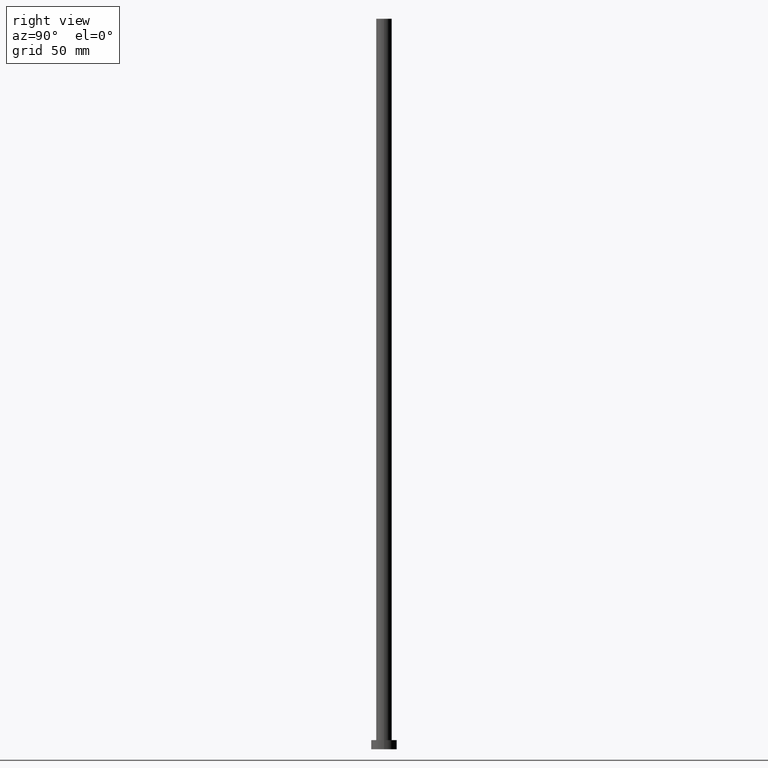
[diagram: clean part render]
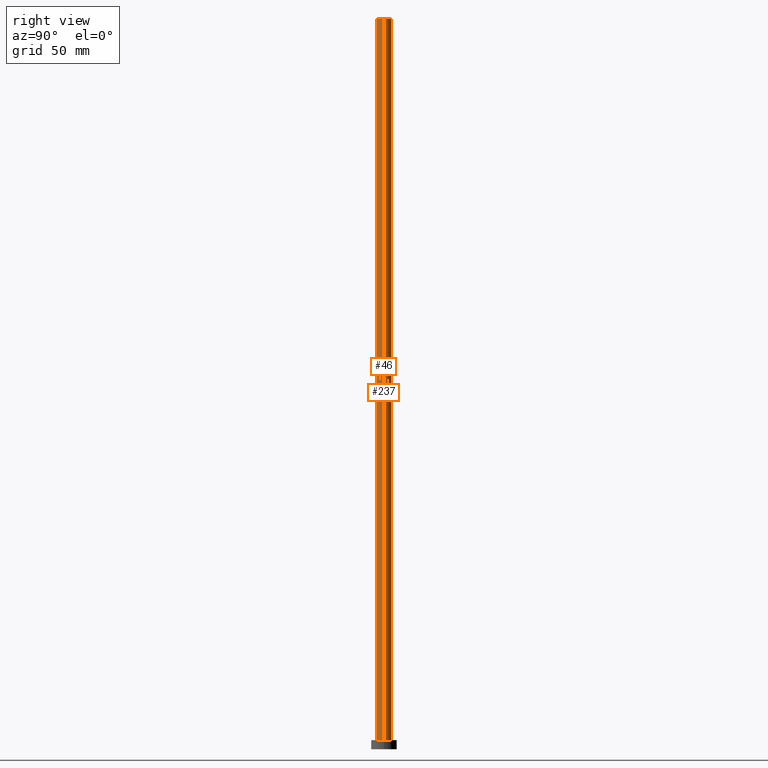
[diagram: same view with one multi-face feature highlighted, each face labeled with its STEP entity id]
A machine part, right view. The highlighted faces form ONE feature: a constant-radius fillet chain: 2 tangent blend faces with common blend radius 4.25 mm. The faces share edges in the B-rep.
Their STEP definitions:
[1] entity #237 (Cylinder):
#4 = EDGE_LOOP ( 'NONE', ( #84, #48, #103, #27 ) ) ;
#6 = VERTEX_POINT ( 'NONE', #68 ) ;
#14 = CARTESIAN_POINT ( 'NONE',  ( 0.000000000000000000, 0.000000000000000000, 5.000000000000000000 ) ) ;
#21 = FACE_OUTER_BOUND ( 'NONE', #4, .T. ) ;
#27 = ORIENTED_EDGE ( 'NONE', *, *, #144, .F. ) ;
#35 = VERTEX_POINT ( 'NONE', #143 ) ;
#38 = CARTESIAN_POINT ( 'NONE',  ( 4.250000000000000000, 5.204748896376249713E-16, 5.000000000000000000 ) ) ;
#48 = ORIENTED_EDGE ( 'NONE', *, *, #91, .T. ) ;
#49 = EDGE_CURVE ( 'NONE', #65, #6, #254, .T. ) ;
#53 = CIRCLE ( 'NONE', #139, 4.250000000000000000 ) ;
#54 = CARTESIAN_POINT ( 'NONE',  ( -4.250000000000000000, 0.000000000000000000, 400.0000000000000000 ) ) ;
#56 = DIRECTION ( 'NONE',  ( -0.000000000000000000, -0.000000000000000000, -1.000000000000000000 ) ) ;
#58 = AXIS2_PLACEMENT_3D ( 'NONE', #14, #247, #184 ) ;
#65 = VERTEX_POINT ( 'NONE', #38 ) ;
#68 = CARTESIAN_POINT ( 'NONE',  ( -4.250000000000000000, 0.000000000000000000, 5.000000000000000000 ) ) ;
#84 = ORIENTED_EDGE ( 'NONE', *, *, #204, .F. ) ;
#90 = DIRECTION ( 'NONE',  ( 1.000000000000000000, 0.000000000000000000, 0.000000000000000000 ) ) ;
#91 = EDGE_CURVE ( 'NONE', #218, #65, #130, .T. ) ;
#98 = DIRECTION ( 'NONE',  ( -0.000000000000000000, -0.000000000000000000, -1.000000000000000000 ) ) ;
#100 = AXIS2_PLACEMENT_3D ( 'NONE', #114, #98, #231 ) ;
#103 = ORIENTED_EDGE ( 'NONE', *, *, #49, .T. ) ;
#106 = DIRECTION ( 'NONE',  ( -0.000000000000000000, -0.000000000000000000, -1.000000000000000000 ) ) ;
#114 = CARTESIAN_POINT ( 'NONE',  ( 0.000000000000000000, 0.000000000000000000, 400.0000000000000000 ) ) ;
#126 = DIRECTION ( 'NONE',  ( 0.000000000000000000, 0.000000000000000000, 1.000000000000000000 ) ) ;
#130 = LINE ( 'NONE', #227, #133 ) ;
#133 = VECTOR ( 'NONE', #106, 1000.000000000000000 ) ;
#139 = AXIS2_PLACEMENT_3D ( 'NONE', #222, #126, #90 ) ;
#143 = CARTESIAN_POINT ( 'NONE',  ( -4.250000000000000000, 0.000000000000000000, 400.0000000000000000 ) ) ;
#144 = EDGE_CURVE ( 'NONE', #35, #6, #226, .T. ) ;
#154 = CARTESIAN_POINT ( 'NONE',  ( 4.250000000000000000, 5.204748896376249713E-16, 400.0000000000000000 ) ) ;
#167 = VECTOR ( 'NONE', #56, 1000.000000000000000 ) ;
#184 = DIRECTION ( 'NONE',  ( 1.000000000000000000, 0.000000000000000000, 0.000000000000000000 ) ) ;
#193 = CYLINDRICAL_SURFACE ( 'NONE', #100, 4.250000000000000000 ) ;
#204 = EDGE_CURVE ( 'NONE', #218, #35, #53, .T. ) ;
#218 = VERTEX_POINT ( 'NONE', #154 ) ;
#222 = CARTESIAN_POINT ( 'NONE',  ( 0.000000000000000000, 0.000000000000000000, 400.0000000000000000 ) ) ;
#226 = LINE ( 'NONE', #54, #167 ) ;
#227 = CARTESIAN_POINT ( 'NONE',  ( 4.250000000000000000, 5.204748896376249713E-16, 400.0000000000000000 ) ) ;
#231 = DIRECTION ( 'NONE',  ( -1.000000000000000000, 0.000000000000000000, 0.000000000000000000 ) ) ;
#237 = ADVANCED_FACE ( 'NONE', ( #21 ), #193, .T. ) ;
#247 = DIRECTION ( 'NONE',  ( 0.000000000000000000, 0.000000000000000000, 1.000000000000000000 ) ) ;
#254 = CIRCLE ( 'NONE', #58, 4.250000000000000000 ) ;
[2] entity #46 (Cylinder):
#3 = DIRECTION ( 'NONE',  ( -1.000000000000000000, 0.000000000000000000, 0.000000000000000000 ) ) ;
#5 = ORIENTED_EDGE ( 'NONE', *, *, #147, .F. ) ;
#6 = VERTEX_POINT ( 'NONE', #68 ) ;
#35 = VERTEX_POINT ( 'NONE', #143 ) ;
#38 = CARTESIAN_POINT ( 'NONE',  ( 4.250000000000000000, 5.204748896376249713E-16, 5.000000000000000000 ) ) ;
#42 = DIRECTION ( 'NONE',  ( 0.000000000000000000, 0.000000000000000000, 1.000000000000000000 ) ) ;
#43 = CIRCLE ( 'NONE', #211, 4.250000000000000000 ) ;
#46 = ADVANCED_FACE ( 'NONE', ( #140 ), #201, .T. ) ;
#50 = ORIENTED_EDGE ( 'NONE', *, *, #81, .T. ) ;
#54 = CARTESIAN_POINT ( 'NONE',  ( -4.250000000000000000, 0.000000000000000000, 400.0000000000000000 ) ) ;
#56 = DIRECTION ( 'NONE',  ( -0.000000000000000000, -0.000000000000000000, -1.000000000000000000 ) ) ;
#65 = VERTEX_POINT ( 'NONE', #38 ) ;
#68 = CARTESIAN_POINT ( 'NONE',  ( -4.250000000000000000, 0.000000000000000000, 5.000000000000000000 ) ) ;
#81 = EDGE_CURVE ( 'NONE', #6, #65, #43, .T. ) ;
#91 = EDGE_CURVE ( 'NONE', #218, #65, #130, .T. ) ;
#95 = DIRECTION ( 'NONE',  ( 1.000000000000000000, 0.000000000000000000, 0.000000000000000000 ) ) ;
#106 = DIRECTION ( 'NONE',  ( -0.000000000000000000, -0.000000000000000000, -1.000000000000000000 ) ) ;
#125 = AXIS2_PLACEMENT_3D ( 'NONE', #220, #142, #3 ) ;
#127 = CARTESIAN_POINT ( 'NONE',  ( 0.000000000000000000, 0.000000000000000000, 5.000000000000000000 ) ) ;
#128 = DIRECTION ( 'NONE',  ( 1.000000000000000000, 0.000000000000000000, 0.000000000000000000 ) ) ;
#130 = LINE ( 'NONE', #227, #133 ) ;
#133 = VECTOR ( 'NONE', #106, 1000.000000000000000 ) ;
#138 = EDGE_LOOP ( 'NONE', ( #241, #5, #219, #50 ) ) ;
#140 = FACE_OUTER_BOUND ( 'NONE', #138, .T. ) ;
#142 = DIRECTION ( 'NONE',  ( -0.000000000000000000, -0.000000000000000000, -1.000000000000000000 ) ) ;
#143 = CARTESIAN_POINT ( 'NONE',  ( -4.250000000000000000, 0.000000000000000000, 400.0000000000000000 ) ) ;
#144 = EDGE_CURVE ( 'NONE', #35, #6, #226, .T. ) ;
#147 = EDGE_CURVE ( 'NONE', #35, #218, #196, .T. ) ;
#154 = CARTESIAN_POINT ( 'NONE',  ( 4.250000000000000000, 5.204748896376249713E-16, 400.0000000000000000 ) ) ;
#167 = VECTOR ( 'NONE', #56, 1000.000000000000000 ) ;
#190 = DIRECTION ( 'NONE',  ( 0.000000000000000000, 0.000000000000000000, 1.000000000000000000 ) ) ;
#196 = CIRCLE ( 'NONE', #206, 4.250000000000000000 ) ;
#201 = CYLINDRICAL_SURFACE ( 'NONE', #125, 4.250000000000000000 ) ;
#206 = AXIS2_PLACEMENT_3D ( 'NONE', #210, #42, #128 ) ;
#210 = CARTESIAN_POINT ( 'NONE',  ( 0.000000000000000000, 0.000000000000000000, 400.0000000000000000 ) ) ;
#211 = AXIS2_PLACEMENT_3D ( 'NONE', #127, #190, #95 ) ;
#218 = VERTEX_POINT ( 'NONE', #154 ) ;
#219 = ORIENTED_EDGE ( 'NONE', *, *, #144, .T. ) ;
#220 = CARTESIAN_POINT ( 'NONE',  ( 0.000000000000000000, 0.000000000000000000, 400.0000000000000000 ) ) ;
#226 = LINE ( 'NONE', #54, #167 ) ;
#227 = CARTESIAN_POINT ( 'NONE',  ( 4.250000000000000000, 5.204748896376249713E-16, 400.0000000000000000 ) ) ;
#241 = ORIENTED_EDGE ( 'NONE', *, *, #91, .F. ) ;